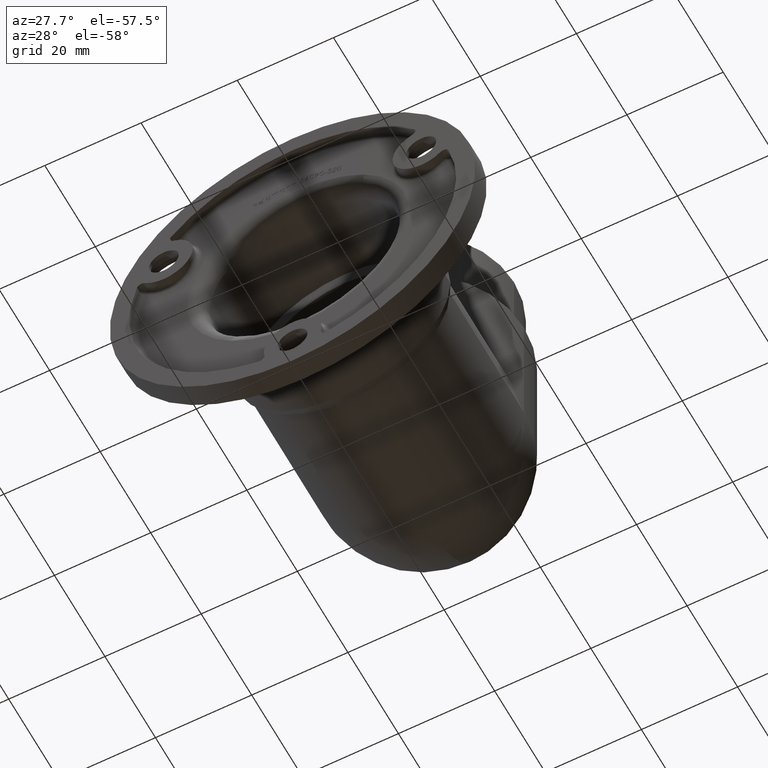
[diagram: clean part render]
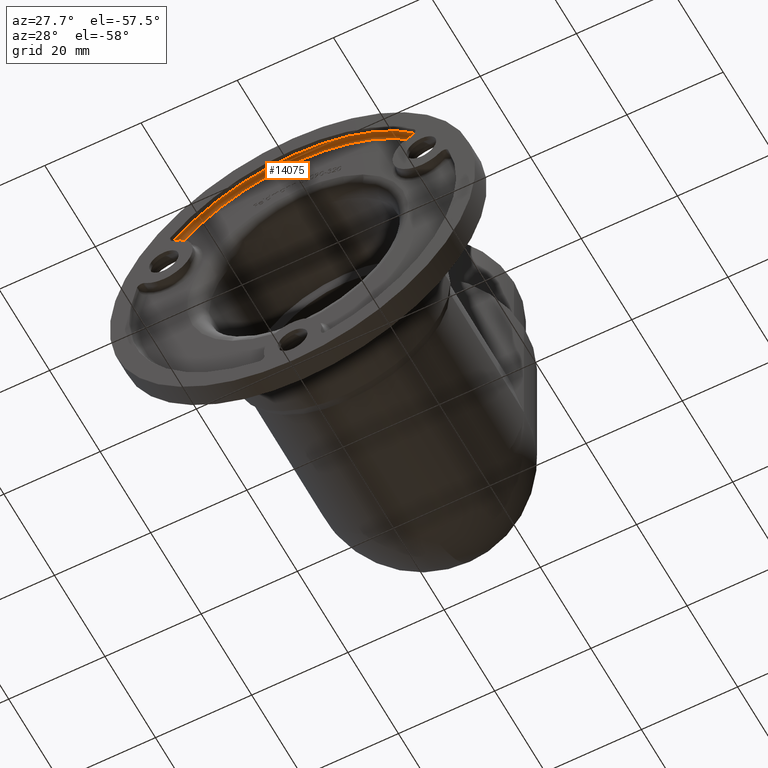
[diagram: same view with one face highlighted and labeled with its STEP entity id]
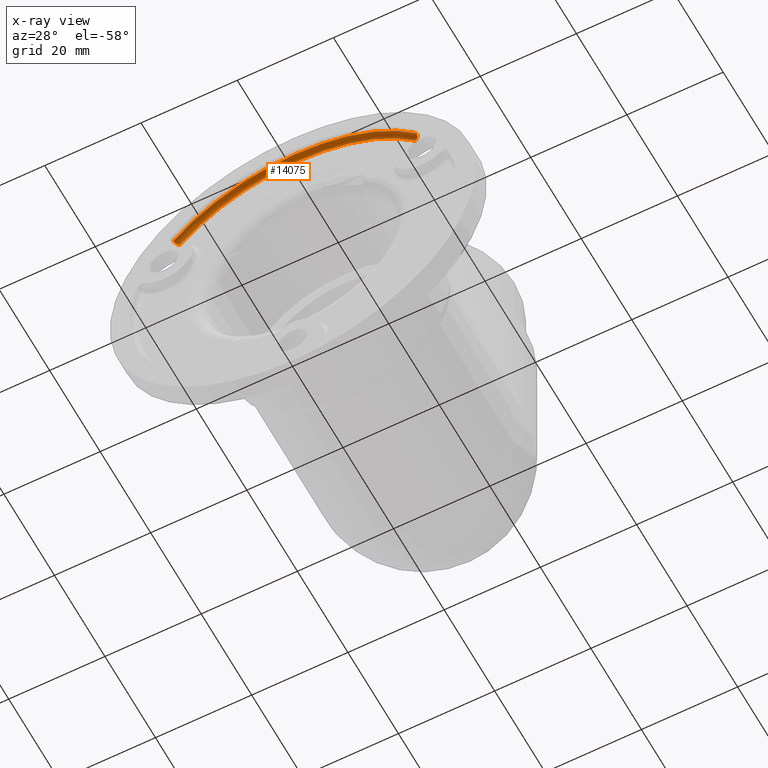
[diagram: x-ray of the same camera — body ghosted, the highlighted face saturated]
A machine part, auxiliary view. The second image highlights one B-rep face of the part: STEP entity #14075.
The next image is the same camera in x-ray: the body ghosted, the highlighted face saturated — about 0% of this face is hidden behind the body in this view.
In plain terms, the highlighted toroidal blend (fillet) surface has major radius 33 mm and minor (blend) radius 1 mm.
Its self-contained STEP definition (entity closure, byte-faithful):
#975 = VERTEX_POINT ( 'NONE', #13814 ) ;
#1379 = DIRECTION ( 'NONE',  ( 0.0000000000000000000, -1.000000000000000000, 0.0000000000000000000 ) ) ;
#2049 = AXIS2_PLACEMENT_3D ( 'NONE', #9955, #4950, #2593 ) ;
#2593 = DIRECTION ( 'NONE',  ( 0.7431066130866586000, 0.0000000000000000000, -0.6691730430814402100 ) ) ;
#2626 = AXIS2_PLACEMENT_3D ( 'NONE', #8731, #1379, #11172 ) ;
#2940 = VERTEX_POINT ( 'NONE', #8232 ) ;
#3102 = CIRCLE ( 'NONE', #4970, 1.000000000000001100 ) ;
#3509 = ORIENTED_EDGE ( 'NONE', *, *, #5980, .F. ) ;
#3531 = DIRECTION ( 'NONE',  ( -0.0000000000000000000, 1.000000000000000000, -0.0000000000000000000 ) ) ;
#3842 = DIRECTION ( 'NONE',  ( 0.0000000000000000000, 0.0000000000000000000, -1.000000000000000000 ) ) ;
#4430 = FACE_OUTER_BOUND ( 'NONE', #15820, .T. ) ;
#4816 = CARTESIAN_POINT ( 'NONE',  ( 0.0000000000000000000, 1.000000000000000000, 0.0000000000000000000 ) ) ;
#4825 = DIRECTION ( 'NONE',  ( 0.6691730430814494300, -1.005616729589861800E-014, -0.7431066130866503800 ) ) ;
#4950 = DIRECTION ( 'NONE',  ( 0.6691730430814404300, -0.0000000000000000000, 0.7431066130866584900 ) ) ;
#4970 = AXIS2_PLACEMENT_3D ( 'NONE', #7286, #4825, #13563 ) ;
#5141 = DIRECTION ( 'NONE',  ( 0.0000000000000000000, -1.000000000000000000, 0.0000000000000000000 ) ) ;
#5582 = TOROIDAL_SURFACE ( 'NONE', #10670, 33.00000000000000000, 1.000000000000000000 ) ;
#5980 = EDGE_CURVE ( 'NONE', #15518, #975, #13908, .T. ) ;
#6185 = ORIENTED_EDGE ( 'NONE', *, *, #8338, .F. ) ;
#6991 = EDGE_CURVE ( 'NONE', #2940, #975, #3102, .T. ) ;
#7113 = CIRCLE ( 'NONE', #2626, 33.00000000000000000 ) ;
#7199 = CARTESIAN_POINT ( 'NONE',  ( -25.26562484494642600, 1.000000000000000000, 22.75188346476893700 ) ) ;
#7286 = CARTESIAN_POINT ( 'NONE',  ( 24.52251823185945400, 1.000000000000000000, 22.08271042168784600 ) ) ;
#8232 = CARTESIAN_POINT ( 'NONE',  ( 24.52251823185945800, 2.000000000000000000, 22.08271042168783500 ) ) ;
#8338 = EDGE_CURVE ( 'NONE', #2940, #10432, #7113, .T. ) ;
#8731 = CARTESIAN_POINT ( 'NONE',  ( 0.0000000000000000000, 2.000000000000000000, 0.0000000000000000000 ) ) ;
#9400 = AXIS2_PLACEMENT_3D ( 'NONE', #4816, #3531, #14763 ) ;
#9537 = ORIENTED_EDGE ( 'NONE', *, *, #9692, .F. ) ;
#9692 = EDGE_CURVE ( 'NONE', #10432, #15518, #15788, .T. ) ;
#9955 = CARTESIAN_POINT ( 'NONE',  ( -24.52251823185976300, 1.000000000000000000, 22.08271042168749400 ) ) ;
#10432 = VERTEX_POINT ( 'NONE', #13608 ) ;
#10670 = AXIS2_PLACEMENT_3D ( 'NONE', #14765, #5141, #3842 ) ;
#11172 = DIRECTION ( 'NONE',  ( 0.0000000000000000000, 0.0000000000000000000, -1.000000000000000000 ) ) ;
#13563 = DIRECTION ( 'NONE',  ( 0.7431066130866504900, 0.0000000000000000000, 0.6691730430814494300 ) ) ;
#13608 = CARTESIAN_POINT ( 'NONE',  ( -24.52251823185976300, 2.000000000000000000, 22.08271042168749400 ) ) ;
#13718 = ORIENTED_EDGE ( 'NONE', *, *, #6991, .T. ) ;
#13814 = CARTESIAN_POINT ( 'NONE',  ( 25.26562484494610700, 1.000000000000000000, 22.75188346476929600 ) ) ;
#13908 = CIRCLE ( 'NONE', #9400, 34.00000000000000000 ) ;
#14075 = ADVANCED_FACE ( 'NONE', ( #4430 ), #5582, .F. ) ;
#14763 = DIRECTION ( 'NONE',  ( 0.0000000000000000000, 0.0000000000000000000, -1.000000000000000000 ) ) ;
#14765 = CARTESIAN_POINT ( 'NONE',  ( 0.0000000000000000000, 1.000000000000000000, 0.0000000000000000000 ) ) ;
#15518 = VERTEX_POINT ( 'NONE', #7199 ) ;
#15788 = CIRCLE ( 'NONE', #2049, 0.9999999999999993300 ) ;
#15820 = EDGE_LOOP ( 'NONE', ( #13718, #3509, #9537, #6185 ) ) ;